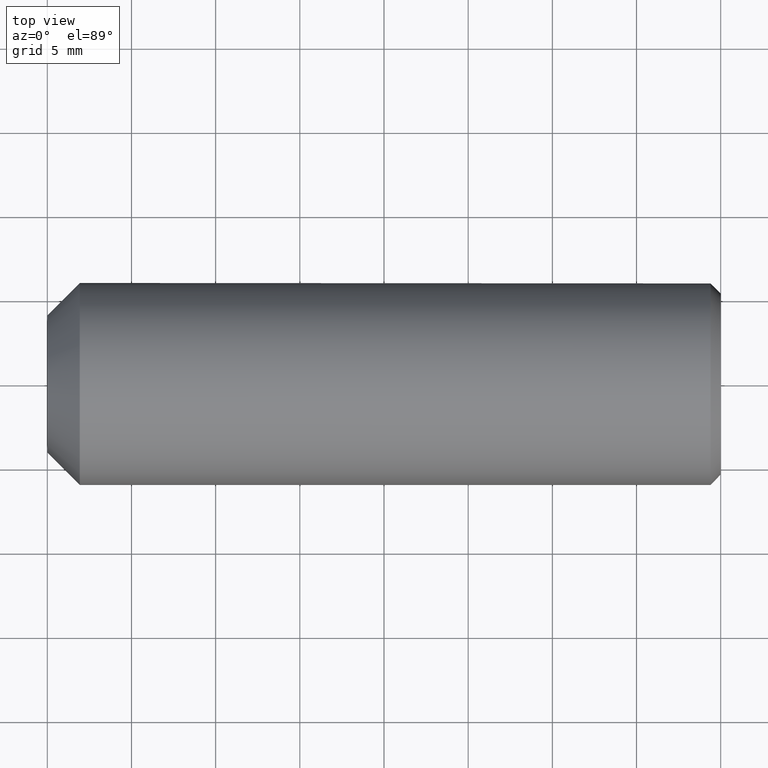
[diagram: clean part render]
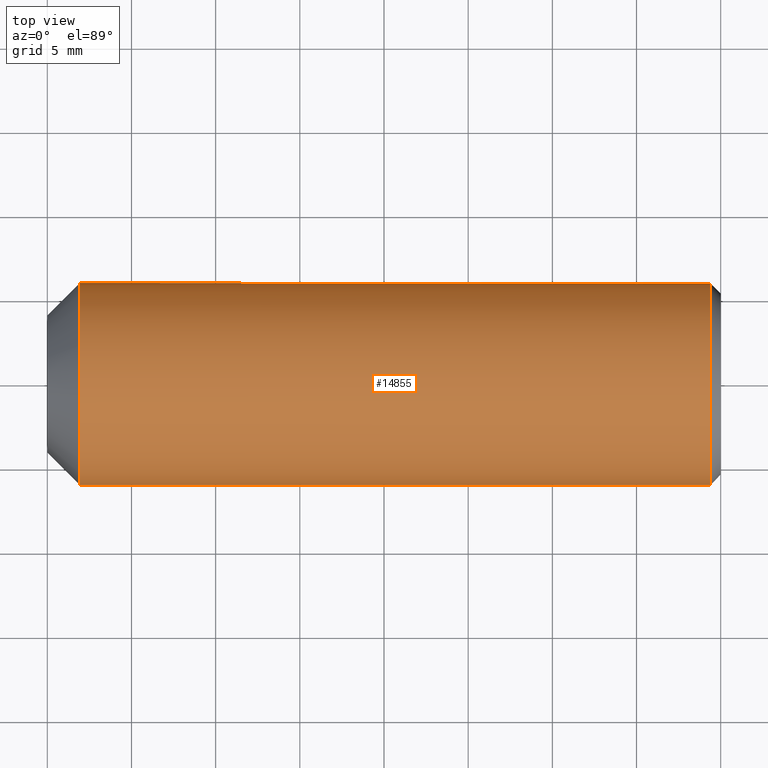
[diagram: same view with one face highlighted and labeled with its STEP entity id]
A machine part, top view. The second image highlights one B-rep face of the part: STEP entity #14855.
In plain terms, the highlighted cylindrical surface (bore or boss wall) has radius 6 mm, axis along (-1, -0, -0).
Its self-contained STEP definition (entity closure, byte-faithful):
#881 = DIRECTION ( 'NONE',  ( 0.0000000000000000000, 0.0000000000000000000, 1.000000000000000000 ) ) ;
#1135 = DIRECTION ( 'NONE',  ( -1.000000000000000000, 2.351807389454579400E-017, -0.0000000000000000000 ) ) ;
#1196 = CARTESIAN_POINT ( 'NONE',  ( 1.929999999999980200, -4.538988261647291400E-017, 0.0000000000000000000 ) ) ;
#1220 = AXIS2_PLACEMENT_3D ( 'NONE', #1196, #1135, #3850 ) ;
#1743 = CIRCLE ( 'NONE', #1220, 6.000000000000000000 ) ;
#2638 = CYLINDRICAL_SURFACE ( 'NONE', #10499, 6.000000000000000900 ) ;
#3016 = CIRCLE ( 'NONE', #7414, 6.000000000000000900 ) ;
#3033 = CARTESIAN_POINT ( 'NONE',  ( 39.39999999999999900, 0.0000000000000000000, 0.0000000000000000000 ) ) ;
#3053 = FACE_OUTER_BOUND ( 'NONE', #13215, .T. ) ;
#3850 = DIRECTION ( 'NONE',  ( -3.614007241618347900E-017, -1.000000000000000000, 0.0000000000000000000 ) ) ;
#4334 = DIRECTION ( 'NONE',  ( -1.000000000000000000, 0.0000000000000000000, 0.0000000000000000000 ) ) ;
#7318 = CARTESIAN_POINT ( 'NONE',  ( 39.39999999999999900, 0.0000000000000000000, -6.000000000000000900 ) ) ;
#7414 = AXIS2_PLACEMENT_3D ( 'NONE', #3033, #4334, #13824 ) ;
#7598 = CARTESIAN_POINT ( 'NONE',  ( 40.00000000000000000, 0.0000000000000000000, 0.0000000000000000000 ) ) ;
#9868 = CARTESIAN_POINT ( 'NONE',  ( 1.929999999999980000, -6.000000000000000000, 0.0000000000000000000 ) ) ;
#10204 = DIRECTION ( 'NONE',  ( -1.000000000000000000, -0.0000000000000000000, -0.0000000000000000000 ) ) ;
#10499 = AXIS2_PLACEMENT_3D ( 'NONE', #7598, #10204, #881 ) ;
#10501 = EDGE_CURVE ( 'NONE', #13140, #13140, #3016, .T. ) ;
#12572 = EDGE_CURVE ( 'NONE', #14206, #14206, #1743, .T. ) ;
#13140 = VERTEX_POINT ( 'NONE', #7318 ) ;
#13215 = EDGE_LOOP ( 'NONE', ( #13834 ) ) ;
#13610 = EDGE_LOOP ( 'NONE', ( #15691 ) ) ;
#13824 = DIRECTION ( 'NONE',  ( 0.0000000000000000000, 0.0000000000000000000, -1.000000000000000000 ) ) ;
#13834 = ORIENTED_EDGE ( 'NONE', *, *, #12572, .F. ) ;
#14206 = VERTEX_POINT ( 'NONE', #9868 ) ;
#14855 = ADVANCED_FACE ( 'NONE', ( #15721, #3053 ), #2638, .T. ) ;
#15691 = ORIENTED_EDGE ( 'NONE', *, *, #10501, .T. ) ;
#15721 = FACE_OUTER_BOUND ( 'NONE', #13610, .T. ) ;